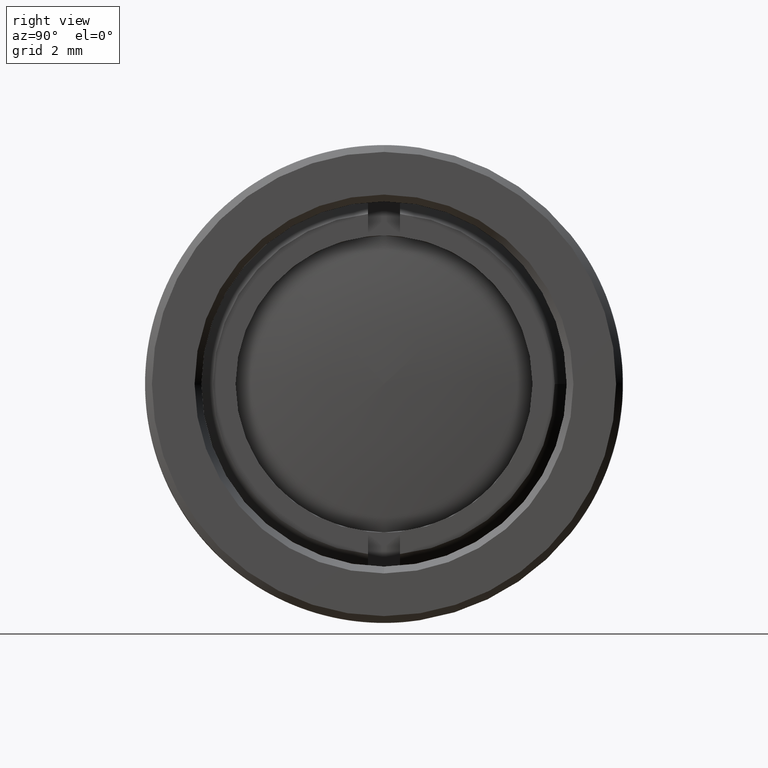
[diagram: clean part render]
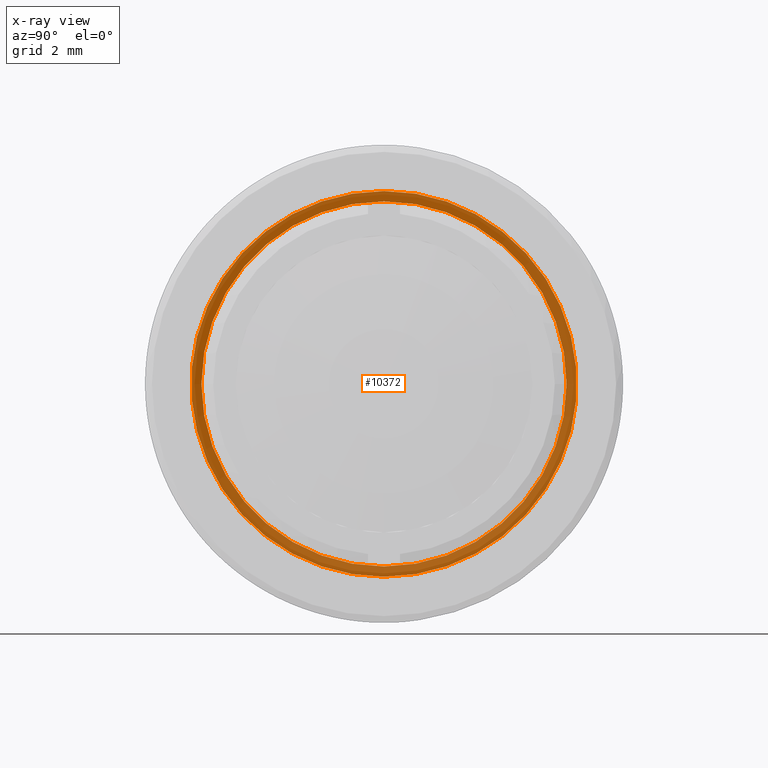
[diagram: x-ray — body ghosted, one internal face saturated and labeled with its STEP entity id]
A machine part, right view, then the same camera in x-ray: the body is ghosted and one INTERNAL B-rep face — a face not visible from any outside direction — is saturated and labeled: STEP entity #10372.
In plain terms, the highlighted planar face has unit normal (1, 0, 0).
Its self-contained STEP definition (entity closure, byte-faithful):
#144 = AXIS2_PLACEMENT_3D ( 'NONE', #11027, #12174, #5383 ) ;
#376 = DIRECTION ( 'NONE',  ( -1.000000000000000000, -0.0000000000000000000, -0.0000000000000000000 ) ) ;
#377 = EDGE_LOOP ( 'NONE', ( #4170, #9747 ) ) ;
#1129 = CIRCLE ( 'NONE', #7357, 7.175500000000000400 ) ;
#1870 = CARTESIAN_POINT ( 'NONE',  ( 3.175000000000003800, 0.0000000000000000000, 0.0000000000000000000 ) ) ;
#1967 = AXIS2_PLACEMENT_3D ( 'NONE', #8927, #2133, #10067 ) ;
#2133 = DIRECTION ( 'NONE',  ( -1.000000000000000000, -0.0000000000000000000, -0.0000000000000000000 ) ) ;
#2305 = CARTESIAN_POINT ( 'NONE',  ( 3.175000000000003400, 8.787453107281832900E-016, -7.175500000000000400 ) ) ;
#2339 = FACE_OUTER_BOUND ( 'NONE', #377, .T. ) ;
#3008 = DIRECTION ( 'NONE',  ( 0.0000000000000000000, 0.0000000000000000000, 1.000000000000000000 ) ) ;
#3852 = AXIS2_PLACEMENT_3D ( 'NONE', #1870, #9788, #3008 ) ;
#4170 = ORIENTED_EDGE ( 'NONE', *, *, #9094, .T. ) ;
#4621 = ORIENTED_EDGE ( 'NONE', *, *, #10101, .F. ) ;
#5091 = ORIENTED_EDGE ( 'NONE', *, *, #13067, .F. ) ;
#5147 = EDGE_LOOP ( 'NONE', ( #5091, #4621 ) ) ;
#5291 = CARTESIAN_POINT ( 'NONE',  ( 3.175000000000003800, 0.0000000000000000000, 6.794500000000000200 ) ) ;
#5383 = DIRECTION ( 'NONE',  ( 0.0000000000000000000, 0.0000000000000000000, -1.000000000000000000 ) ) ;
#6059 = DIRECTION ( 'NONE',  ( -1.000000000000000000, -0.0000000000000000000, -0.0000000000000000000 ) ) ;
#6082 = CIRCLE ( 'NONE', #3852, 6.794500000000000200 ) ;
#6404 = CARTESIAN_POINT ( 'NONE',  ( 3.175000000000003400, 0.0000000000000000000, 7.175500000000000400 ) ) ;
#6765 = CIRCLE ( 'NONE', #1967, 6.794500000000000200 ) ;
#7154 = CARTESIAN_POINT ( 'NONE',  ( 3.175000000000003400, 0.0000000000000000000, 0.0000000000000000000 ) ) ;
#7357 = AXIS2_PLACEMENT_3D ( 'NONE', #7154, #376, #8295 ) ;
#7500 = PLANE ( 'NONE',  #144 ) ;
#7957 = VERTEX_POINT ( 'NONE', #9890 ) ;
#8295 = DIRECTION ( 'NONE',  ( 0.0000000000000000000, 0.0000000000000000000, 1.000000000000000000 ) ) ;
#8360 = FACE_BOUND ( 'NONE', #5147, .T. ) ;
#8756 = CIRCLE ( 'NONE', #11643, 7.175500000000000400 ) ;
#8927 = CARTESIAN_POINT ( 'NONE',  ( 3.175000000000003800, 0.0000000000000000000, 0.0000000000000000000 ) ) ;
#9049 = VERTEX_POINT ( 'NONE', #2305 ) ;
#9094 = EDGE_CURVE ( 'NONE', #12892, #9049, #8756, .T. ) ;
#9747 = ORIENTED_EDGE ( 'NONE', *, *, #14064, .T. ) ;
#9788 = DIRECTION ( 'NONE',  ( -1.000000000000000000, -0.0000000000000000000, -0.0000000000000000000 ) ) ;
#9890 = CARTESIAN_POINT ( 'NONE',  ( 3.175000000000003800, 8.320862676806691200E-016, -6.794500000000000200 ) ) ;
#10067 = DIRECTION ( 'NONE',  ( 0.0000000000000000000, 0.0000000000000000000, 1.000000000000000000 ) ) ;
#10101 = EDGE_CURVE ( 'NONE', #7957, #14243, #6765, .T. ) ;
#10372 = ADVANCED_FACE ( 'NONE', ( #8360, #2339 ), #7500, .F. ) ;
#11027 = CARTESIAN_POINT ( 'NONE',  ( 3.175000000000003400, 7.175500000000000400, 0.0000000000000000000 ) ) ;
#11643 = AXIS2_PLACEMENT_3D ( 'NONE', #12838, #6059, #13968 ) ;
#12174 = DIRECTION ( 'NONE',  ( 1.000000000000000000, 0.0000000000000000000, 0.0000000000000000000 ) ) ;
#12838 = CARTESIAN_POINT ( 'NONE',  ( 3.175000000000003400, 0.0000000000000000000, 0.0000000000000000000 ) ) ;
#12892 = VERTEX_POINT ( 'NONE', #6404 ) ;
#13067 = EDGE_CURVE ( 'NONE', #14243, #7957, #6082, .T. ) ;
#13968 = DIRECTION ( 'NONE',  ( 0.0000000000000000000, 0.0000000000000000000, 1.000000000000000000 ) ) ;
#14064 = EDGE_CURVE ( 'NONE', #9049, #12892, #1129, .T. ) ;
#14243 = VERTEX_POINT ( 'NONE', #5291 ) ;